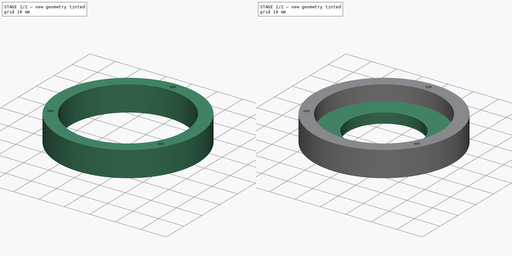
[diagram: build sequence overview — one tinted view per stage of 2, left to right]
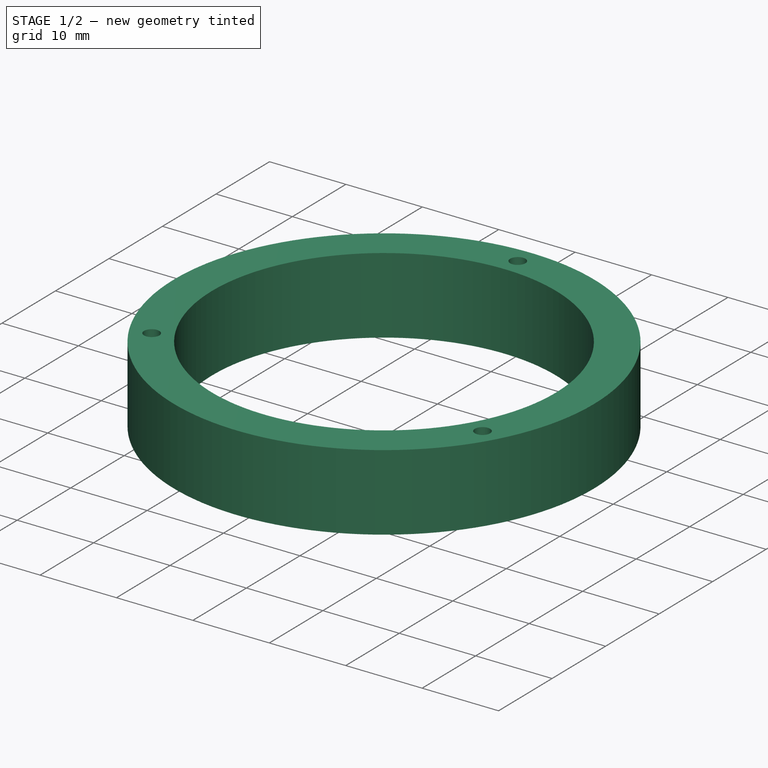
[diagram: stage 1 of 2 — iso view after this stage's code; geometry added in this stage tinted green]
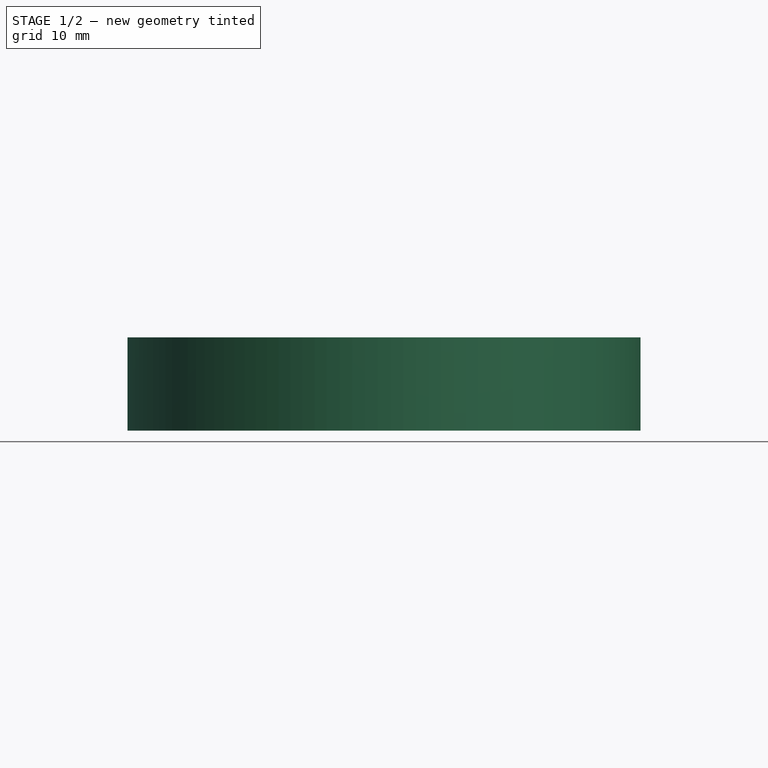
[diagram: stage 1 of 2 — front view after this stage's code; geometry added in this stage tinted green]
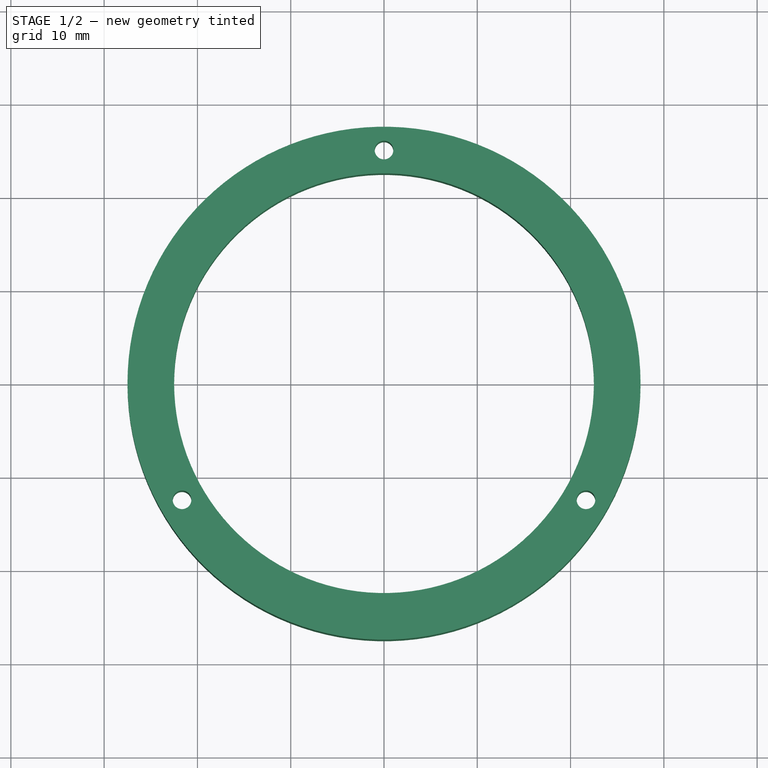
[diagram: stage 1 of 2 — top view after this stage's code; geometry added in this stage tinted green]
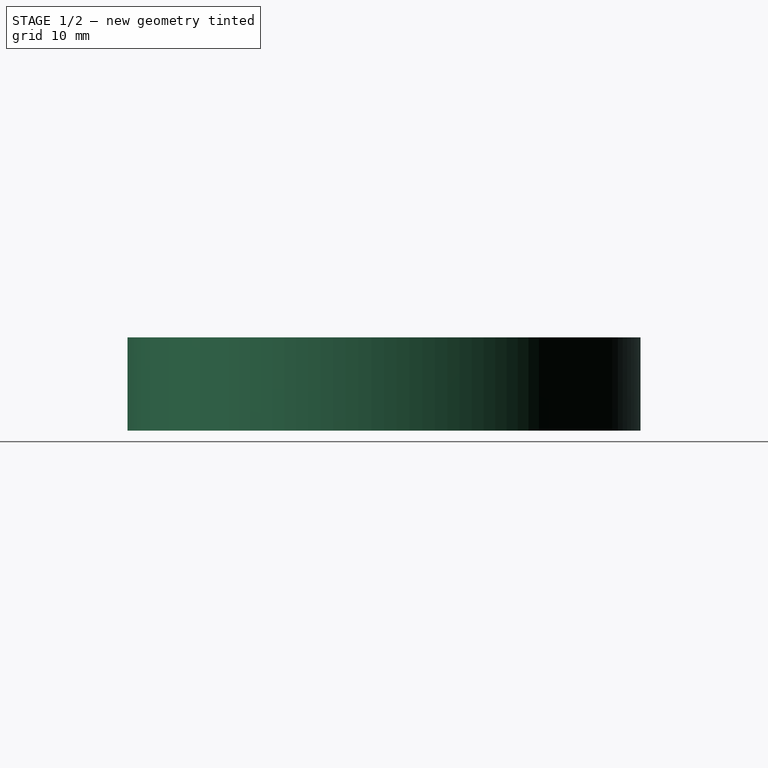
[diagram: stage 1 of 2 — right view after this stage's code; geometry added in this stage tinted green]
FCSTD DOCUMENT  (FreeCAD 0.19R24276 (Git))
Label: Gear_middle_part_d28_d55_v4
License: All rights reserved
LicenseURL: http://en.wikipedia.org/wiki/All_rights_reserved
objects: Sketcher::SketchObject×5, PartDesign::Pad×2, PartDesign::Body×1
note: 10 computed .brp shape members not serialized (recipe doc carries the construction recipe); baked Part::Feature solids carry a one-line shape summary decoded from their .brp

FEATURE [Sketcher::SketchObject] Sketch  label="Sketch_d45_d55_3otv_d2_on_d_50"
  FullyConstrained = true
  MapMode = 5
  Support = -> [XY_Plane]
  sketch-geometry (9):
    g0: Circle CenterX=0 CenterY=0 CenterZ=0 NormalX=0 NormalY=0 NormalZ=1 AngleXU=0 Radius=22.5
    g1: Circle CenterX=0 CenterY=0 CenterZ=0 NormalX=0 NormalY=0 NormalZ=1 AngleXU=0 Radius=27.5
    g2: LineSegment StartX=0 StartY=25 StartZ=0 EndX=-21.6506 EndY=-12.5 EndZ=0
    g3: LineSegment StartX=-21.6506 StartY=-12.5 StartZ=0 EndX=21.6506 EndY=-12.5 EndZ=0
    g4: LineSegment StartX=21.6506 StartY=-12.5 StartZ=0 EndX=0 EndY=25 EndZ=0
    g5: Circle CenterX=0 CenterY=0 CenterZ=0 NormalX=0 NormalY=0 NormalZ=1 AngleXU=0 Radius=25
    g6: Circle CenterX=0 CenterY=25 CenterZ=0 NormalX=0 NormalY=0 NormalZ=1 AngleXU=0 Radius=1
    g7: Circle CenterX=-21.6506 CenterY=-12.5 CenterZ=0 NormalX=0 NormalY=0 NormalZ=1 AngleXU=0 Radius=1
    g8: Circle CenterX=21.6506 CenterY=-12.5 CenterZ=0 NormalX=0 NormalY=0 NormalZ=1 AngleXU=0 Radius=1
  constraints (21):
    c: Coincident(g0,g-1)
    c: Coincident(g1,g0)
    c: Diameter(g1) = 55
    c: Diameter(g0) = 45
    c: Coincident(g2,g3)
    c: Coincident(g3,g4)
    c: Coincident(g4,g2)
    c: Equal(g2,g3)
    c: Equal(g2,g4)
    c: PointOnObject(g2,g5)
    c: PointOnObject(g3,g5)
    c: PointOnObject(g4,g5)
    c: Coincident(g5,g0)
    c: PointOnObject(g4,g-2)
    c: Diameter(g5) = 50
    c: Coincident(g6,g2)
    c: Coincident(g7,g2)
    c: Coincident(g8,g3)
    c: Diameter(g8) = 2
    c: Equal(g8,g7)
    c: Equal(g8,g6)
FEATURE [PartDesign::Pad] Pad  label="Pad_h14"
  Direction = (1,1,1)
  Length = 10
  Length2 = 100
  Profile = -> Sketch
  Type = 0
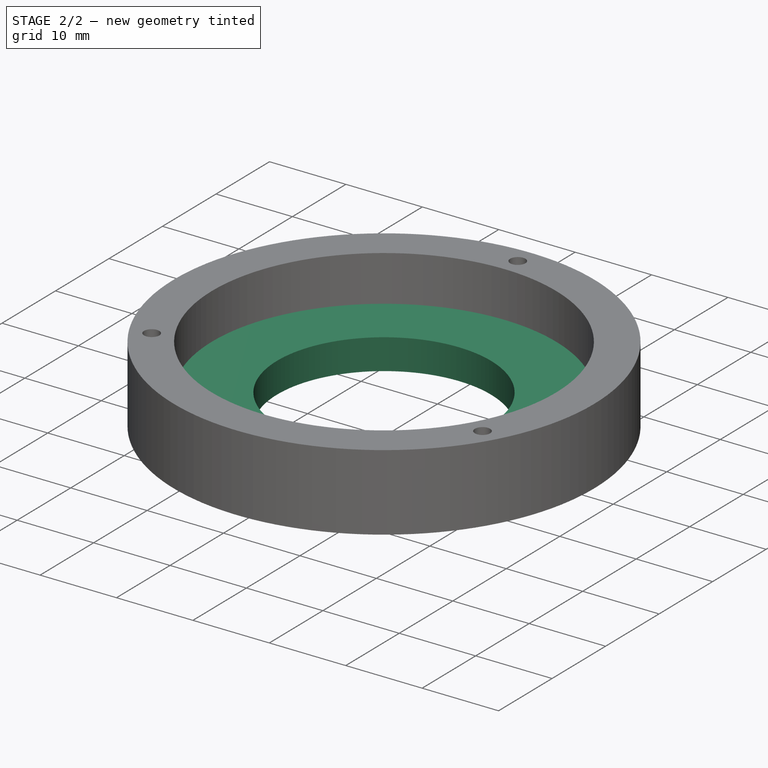
[diagram: stage 2 of 2 — iso view after this stage's code; geometry added in this stage tinted green]
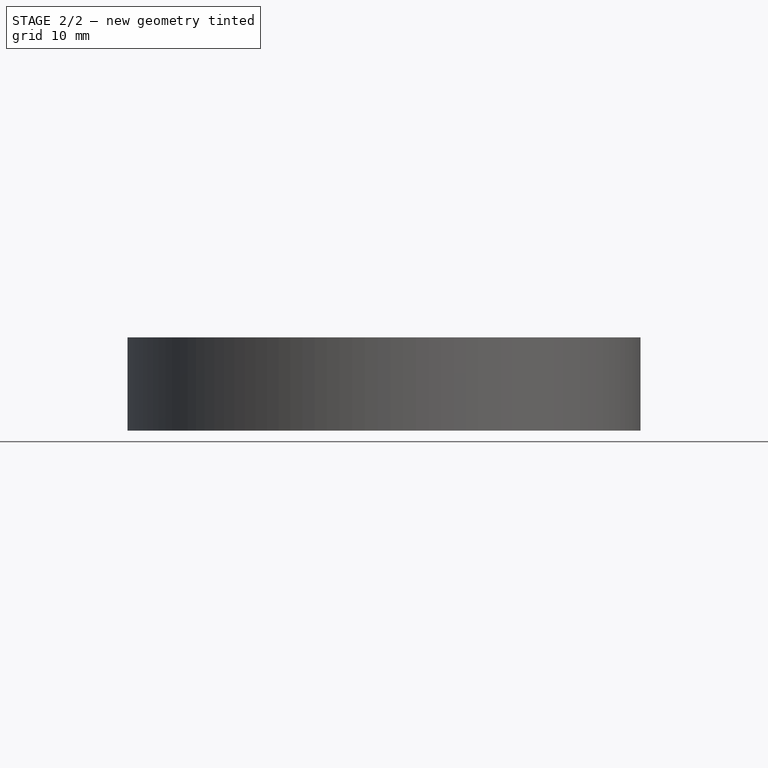
[diagram: stage 2 of 2 — front view after this stage's code; geometry added in this stage tinted green]
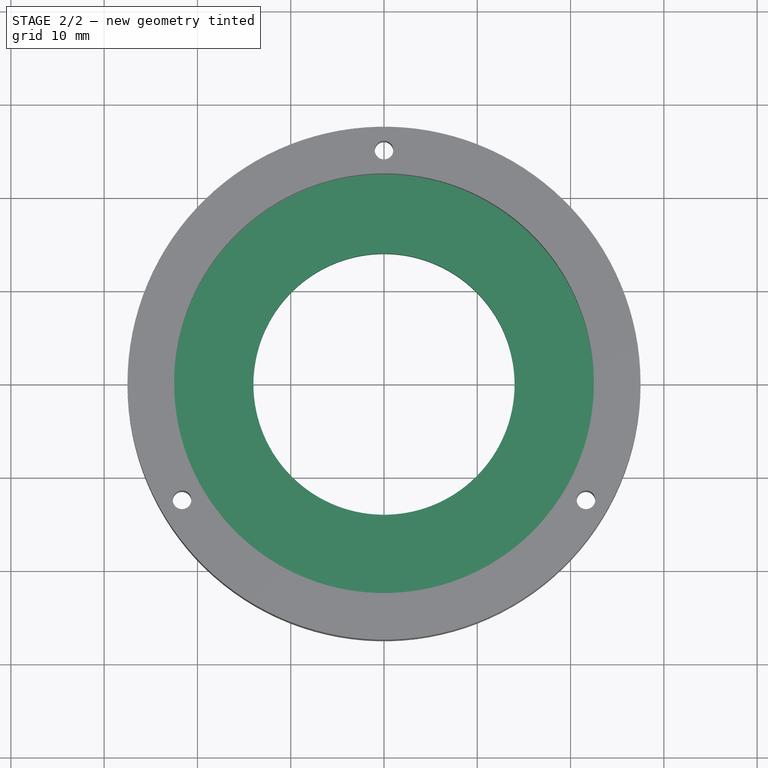
[diagram: stage 2 of 2 — top view after this stage's code; geometry added in this stage tinted green]
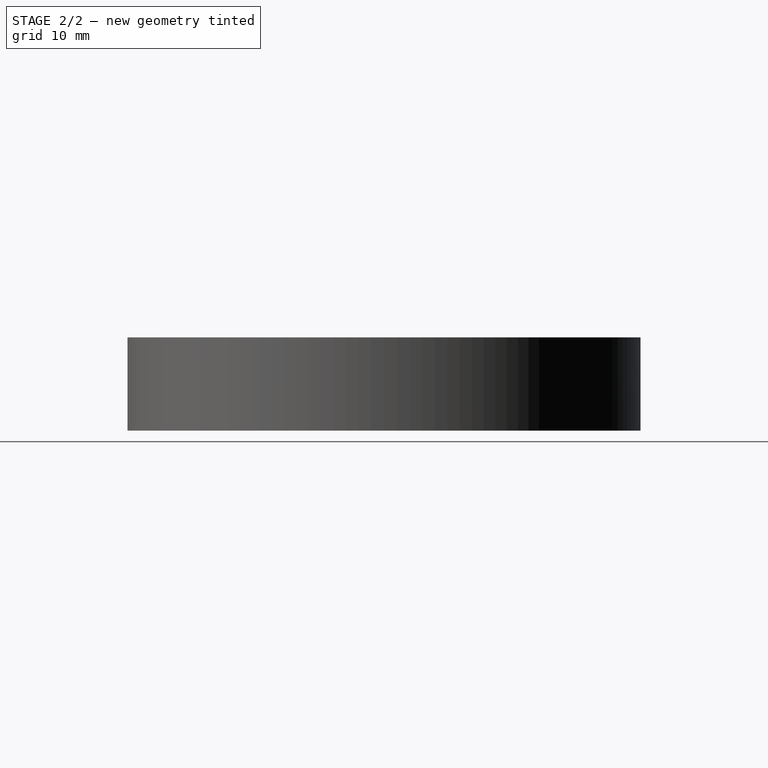
[diagram: stage 2 of 2 — right view after this stage's code; geometry added in this stage tinted green]
FEATURE [Sketcher::SketchObject] Sketch001  label="Sketch001_d28_d55"
  FullyConstrained = true
  MapMode = 5
  Support = -> [XY_Plane]
  sketch-geometry (2):
    g0: Circle CenterX=0 CenterY=0 CenterZ=0 NormalX=0 NormalY=0 NormalZ=1 AngleXU=0 Radius=22.5
    g1: Circle CenterX=0 CenterY=0 CenterZ=0 NormalX=0 NormalY=0 NormalZ=1 AngleXU=0 Radius=14
  constraints (4):
    c: Coincident(g0,g-1)
    c: Coincident(g1,g0)
    c: Diameter(g1) = 28
    c: Diameter(g0) = 45
FEATURE [PartDesign::Pad] Pad001  label="Pad001_h4"
  BaseFeature = -> Pad
  Direction = (1,1,1)
  Length = 4
  Length2 = 100
  Profile = -> Sketch001
  Type = 0
FEATURE [Sketcher::SketchObject] Sketch002  label="Sketch002_d22,5_d14_rebro_h16"
  FullyConstrained = false
  MapMode = 5
  Placement = pos=(0,0,0) rot=(1,0,0;1.5708rad)
  Support = -> [XZ_Plane]
  sketch-geometry (8):
    g0: LineSegment StartX=22.5 StartY=10 StartZ=0 EndX=22.5 EndY=4 EndZ=0
    g1: LineSegment StartX=22.5 StartY=4 StartZ=0 EndX=13 EndY=4 EndZ=0
    g2: LineSegment StartX=13 StartY=4 StartZ=0 EndX=13 EndY=16 EndZ=0
    g3: LineSegment StartX=22.5 StartY=10 StartZ=0 EndX=13 EndY=16 EndZ=0
    g4: LineSegment StartX=-22.5 StartY=10 StartZ=0 EndX=-22.5 EndY=4 EndZ=0
    g5: LineSegment StartX=-22.5 StartY=4 StartZ=0 EndX=-13 EndY=4 EndZ=0
    g6: LineSegment StartX=-13 StartY=4 StartZ=0 EndX=-13 EndY=16 EndZ=0
    g7: LineSegment StartX=-22.5 StartY=10 StartZ=0 EndX=-13 EndY=16 EndZ=0
  constraints (17):
    c: Coincident(g0,g1)
    c: Horizontal(g1)
    c: Vertical(g0)
    c: DistanceX(g-1,g0) = 22.5
    c: DistanceY(g-1,g1) = 4
    c: DistanceY(g0,g0) = 6
    c: DistanceX(g-1,g1) = 13
    c: Coincident(g2,g1)
    c: Vertical(g2)
    c: DistanceY(g-1,g2) = 16
    c: Coincident(g3,g2)
    c: Coincident(g4,g5)
    c: Horizontal(g5)
    c: Vertical(g4)
    c: Coincident(g6,g5)
    c: Vertical(g6)
    c: Coincident(g7,g6)
FEATURE [Sketcher::SketchObject] Sketch003  label="Sketch003_rebro"
  FullyConstrained = false
  MapMode = 5
  Placement = pos=(0,0,0) rot=(0.57735,0.57735,0.57735;2.0944rad)
  Support = -> [YZ_Plane]
  sketch-geometry (8):
    g0: LineSegment StartX=13 StartY=4 StartZ=0 EndX=22.5 EndY=4 EndZ=0
    g1: LineSegment StartX=22.5 StartY=4 StartZ=0 EndX=22.5 EndY=10 EndZ=0
    g2: LineSegment StartX=13 StartY=4 StartZ=0 EndX=13 EndY=16 EndZ=0
    g3: LineSegment StartX=22.5 StartY=10 StartZ=0 EndX=13 EndY=16 EndZ=0
    g4: LineSegment StartX=-13 StartY=4 StartZ=0 EndX=-22.5 EndY=4 EndZ=0
    g5: LineSegment StartX=-22.5 StartY=4 StartZ=0 EndX=-22.5 EndY=10 EndZ=0
    g6: LineSegment StartX=-13 StartY=4 StartZ=0 EndX=-13 EndY=16 EndZ=0
    g7: LineSegment StartX=-22.5 StartY=10 StartZ=0 EndX=-13 EndY=16 EndZ=0
  constraints (14):
    c: Coincident(g0,g1)
    c: Horizontal(g0)
    c: Vertical(g1)
    c: DistanceY(g-1,g0) = 4
    c: DistanceX(g-1,g0) = 22.5
    c: DistanceX(g-1,g0) = 13
    c: Vertical(g2)
    c: Coincident(g3,g2)
    c: DistanceY(g-1,g2) = 16
    c: Coincident(g4,g5)
    c: Horizontal(g4)
    c: Vertical(g5)
    c: Vertical(g6)
    c: Coincident(g7,g6)
FEATURE [Sketcher::SketchObject] Sketch004  label="Sketch004_d27_d28"
  FullyConstrained = true
  MapMode = 5
  Support = -> [XY_Plane]
  sketch-geometry (2):
    g0: Circle CenterX=0 CenterY=0 CenterZ=0 NormalX=0 NormalY=0 NormalZ=1 AngleXU=0 Radius=14
    g1: Circle CenterX=0 CenterY=0 CenterZ=0 NormalX=0 NormalY=0 NormalZ=1 AngleXU=0 Radius=13.5
  constraints (4):
    c: Coincident(g0,g-1)
    c: Coincident(g1,g0)
    c: Diameter(g0) = 28
    c: Diameter(g1) = 27
FEATURE [PartDesign::Body] Body
  Group = -> [Sketch,Pad,Sketch001,Pad001,Sketch002,Sketch003,Sketch004]
  Origin = -> Origin
  Tip = -> Pad001
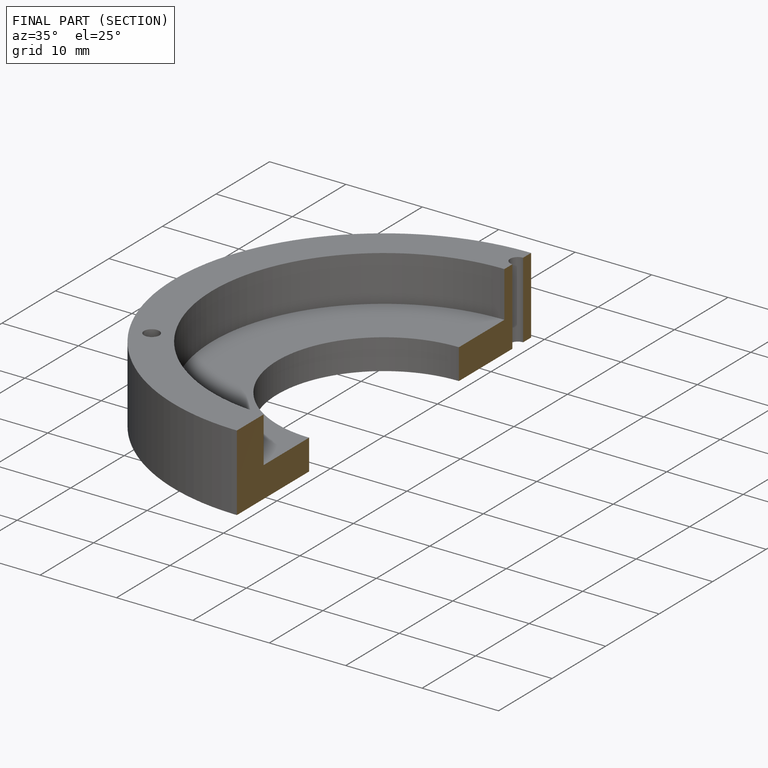
[diagram: finished part — half-section view (interior)]
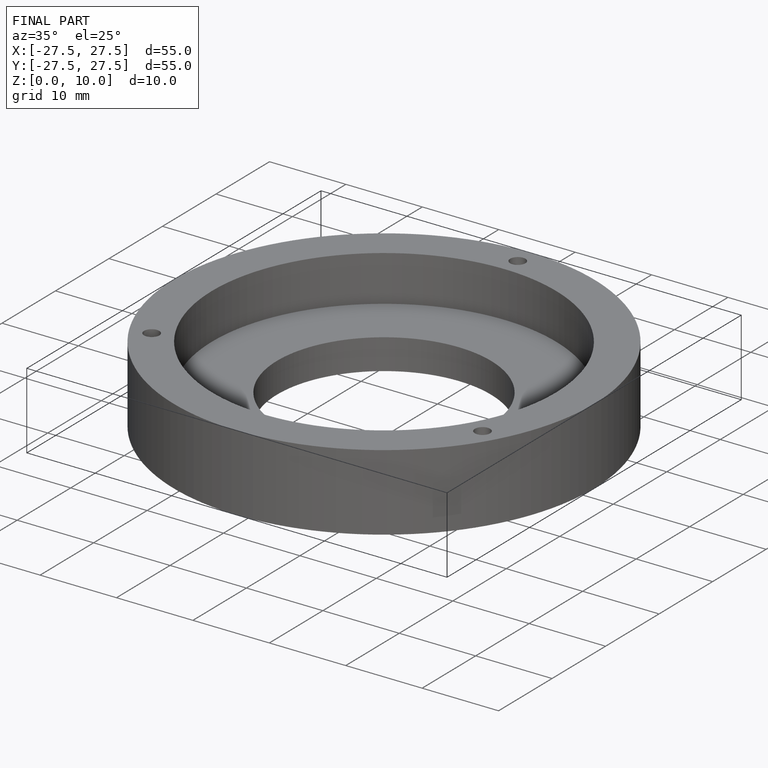
[diagram: finished part — iso view with bounding-box wireframe]
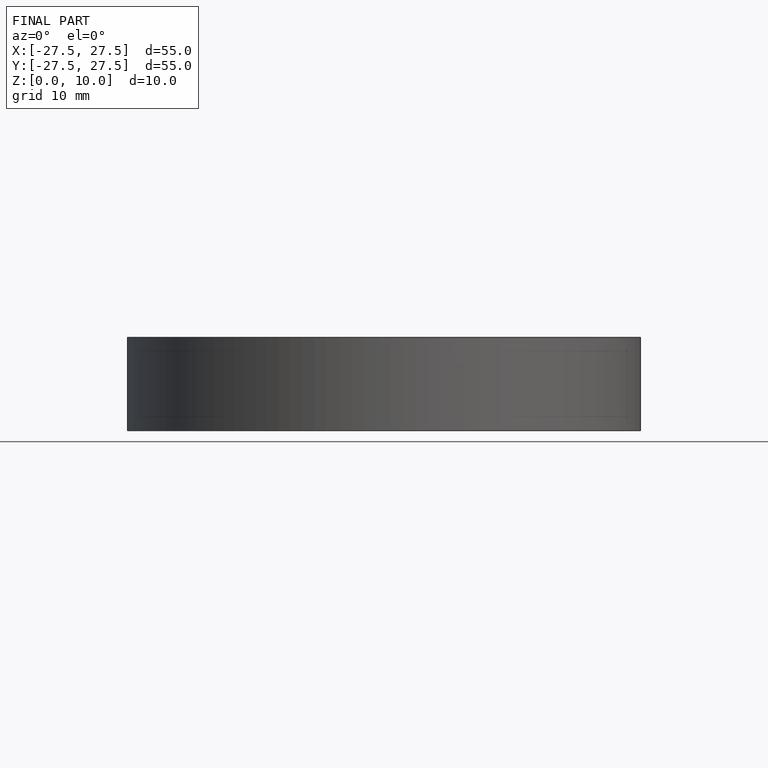
[diagram: finished part — front view with bounding-box wireframe]
